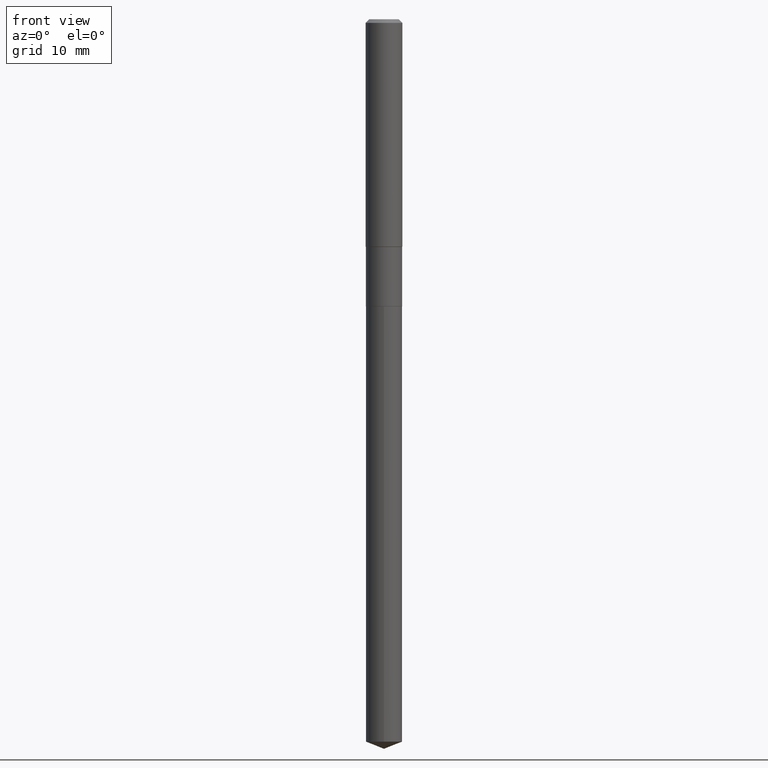
[diagram: clean part render]
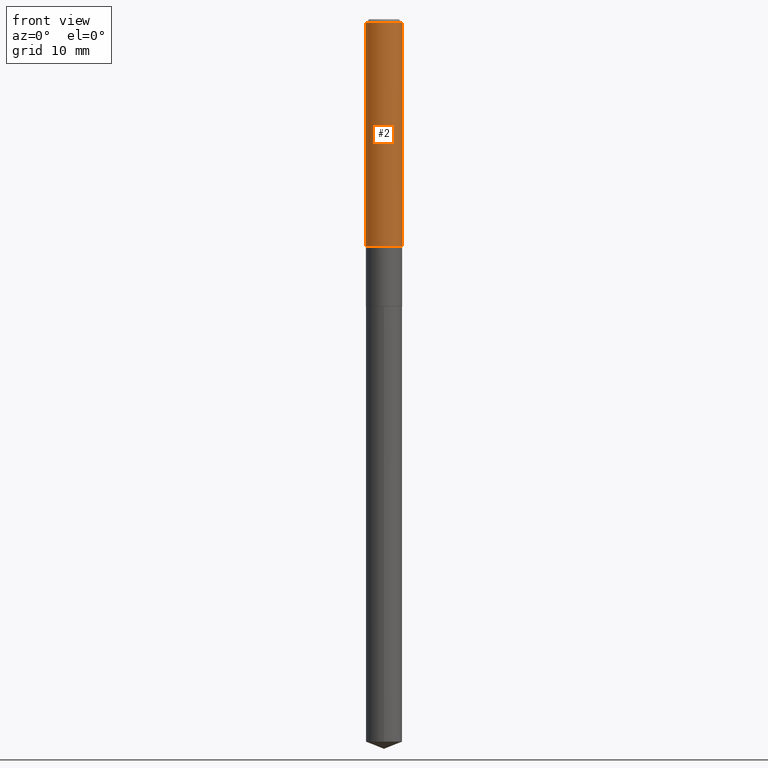
[diagram: same view with one face highlighted and labeled with its STEP entity id]
A machine part, front view. The second image highlights one B-rep face of the part: STEP entity #2.
In plain terms, the highlighted cylindrical surface (edge-blend (fillet) strip) has radius 2.9997 mm, axis along (-0, 0, 1).
Its self-contained STEP definition (entity closure, byte-faithful):
#2 = ADVANCED_FACE ( 'NONE', ( #76 ), #72, .T. ) ;
#15 = VECTOR ( 'NONE', #403, 39.37007874015748143 ) ;
#19 = CARTESIAN_POINT ( 'NONE',  ( 0.1180999999999999966, -9.071566814582237199E-16, -0.02362000000000014088 ) ) ;
#24 = EDGE_CURVE ( 'NONE', #75, #318, #365, .T. ) ;
#45 = VERTEX_POINT ( 'NONE', #296 ) ;
#53 = CARTESIAN_POINT ( 'NONE',  ( 3.568550355425657830E-29, -5.094944143706856564E-15, -1.459249999999998826 ) ) ;
#59 = VECTOR ( 'NONE', #434, 39.37007874015748143 ) ;
#72 = CYLINDRICAL_SURFACE ( 'NONE', #441, 0.1181000000000000799 ) ;
#75 = VERTEX_POINT ( 'NONE', #431 ) ;
#76 = FACE_OUTER_BOUND ( 'NONE', #448, .T. ) ;
#89 = AXIS2_PLACEMENT_3D ( 'NONE', #266, #479, #380 ) ;
#99 = CARTESIAN_POINT ( 'NONE',  ( -0.1181000000000001632, -4.255793172774176789E-15, -1.459249999999998826 ) ) ;
#104 = LINE ( 'NONE', #255, #15 ) ;
#110 = EDGE_CURVE ( 'NONE', #357, #45, #360, .T. ) ;
#195 = CARTESIAN_POINT ( 'NONE',  ( 0.000000000000000000, 0.000000000000000000, 0.000000000000000000 ) ) ;
#209 = DIRECTION ( 'NONE',  ( 1.000000000000000000, -6.982962677686263555E-15, 0.000000000000000000 ) ) ;
#214 = LINE ( 'NONE', #284, #59 ) ;
#244 = DIRECTION ( 'NONE',  ( -2.445468806185136597E-29, 3.491481338843145583E-15, 1.000000000000000000 ) ) ;
#255 = CARTESIAN_POINT ( 'NONE',  ( -0.1181000000000000799, 8.391509709326788873E-16, -5.809262341591047988E-30 ) ) ;
#266 = CARTESIAN_POINT ( 'NONE',  ( 5.776197320209327532E-31, -8.246878922347559293E-17, -0.02362000000000014088 ) ) ;
#269 = ORIENTED_EDGE ( 'NONE', *, *, #399, .F. ) ;
#272 = ORIENTED_EDGE ( 'NONE', *, *, #110, .T. ) ;
#284 = CARTESIAN_POINT ( 'NONE',  ( 0.1181000000000000799, -8.246878922347486570E-16, 5.758764772215004644E-30 ) ) ;
#296 = CARTESIAN_POINT ( 'NONE',  ( 0.1181000000000001632, -5.919632035941605615E-15, -1.459249999999998826 ) ) ;
#318 = VERTEX_POINT ( 'NONE', #19 ) ;
#322 = AXIS2_PLACEMENT_3D ( 'NONE', #53, #244, #209 ) ;
#337 = EDGE_CURVE ( 'NONE', #45, #318, #214, .T. ) ;
#341 = DIRECTION ( 'NONE',  ( 1.000000000000000000, -6.982962677686266711E-15, 4.876176775795936353E-29 ) ) ;
#357 = VERTEX_POINT ( 'NONE', #99 ) ;
#360 = CIRCLE ( 'NONE', #322, 0.1181000000000001632 ) ;
#365 = CIRCLE ( 'NONE', #89, 0.1180999999999999966 ) ;
#376 = DIRECTION ( 'NONE',  ( -2.445468806185136597E-29, 3.491481338843145583E-15, 1.000000000000000000 ) ) ;
#380 = DIRECTION ( 'NONE',  ( 1.000000000000000000, -6.982962677686266711E-15, 0.000000000000000000 ) ) ;
#399 = EDGE_CURVE ( 'NONE', #357, #75, #104, .T. ) ;
#403 = DIRECTION ( 'NONE',  ( -2.445468806185136877E-29, 3.491481338843145188E-15, 1.000000000000000000 ) ) ;
#414 = ORIENTED_EDGE ( 'NONE', *, *, #24, .F. ) ;
#431 = CARTESIAN_POINT ( 'NONE',  ( -0.1180999999999999966, -1.749555495532486433E-15, -0.02362000000000014088 ) ) ;
#434 = DIRECTION ( 'NONE',  ( -2.445468806185136877E-29, 3.491481338843145188E-15, 1.000000000000000000 ) ) ;
#441 = AXIS2_PLACEMENT_3D ( 'NONE', #195, #376, #341 ) ;
#448 = EDGE_LOOP ( 'NONE', ( #269, #272, #488, #414 ) ) ;
#479 = DIRECTION ( 'NONE',  ( -2.445468806185136597E-29, 3.491481338843145583E-15, 1.000000000000000000 ) ) ;
#488 = ORIENTED_EDGE ( 'NONE', *, *, #337, .T. ) ;